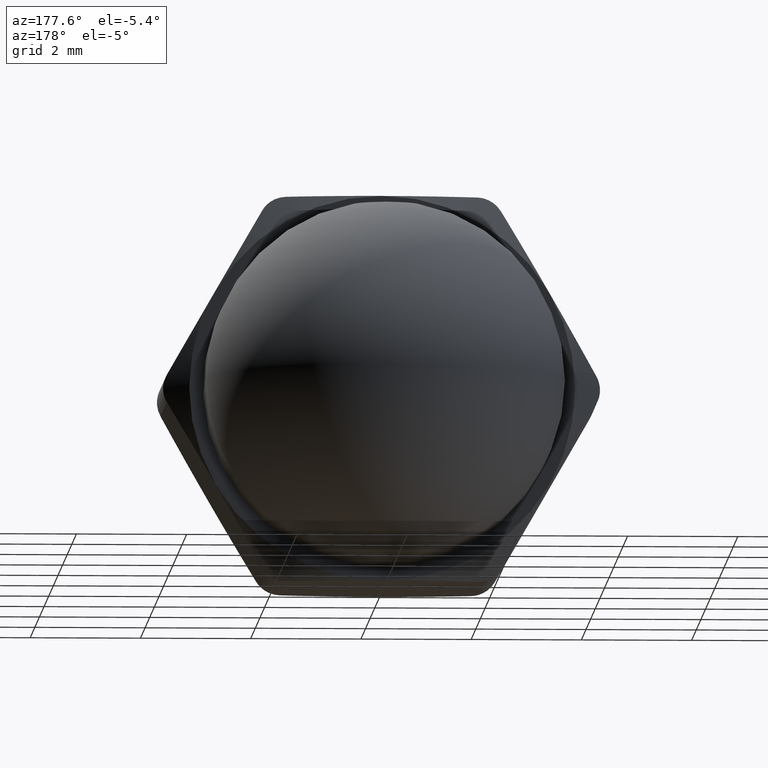
[diagram: clean part render]
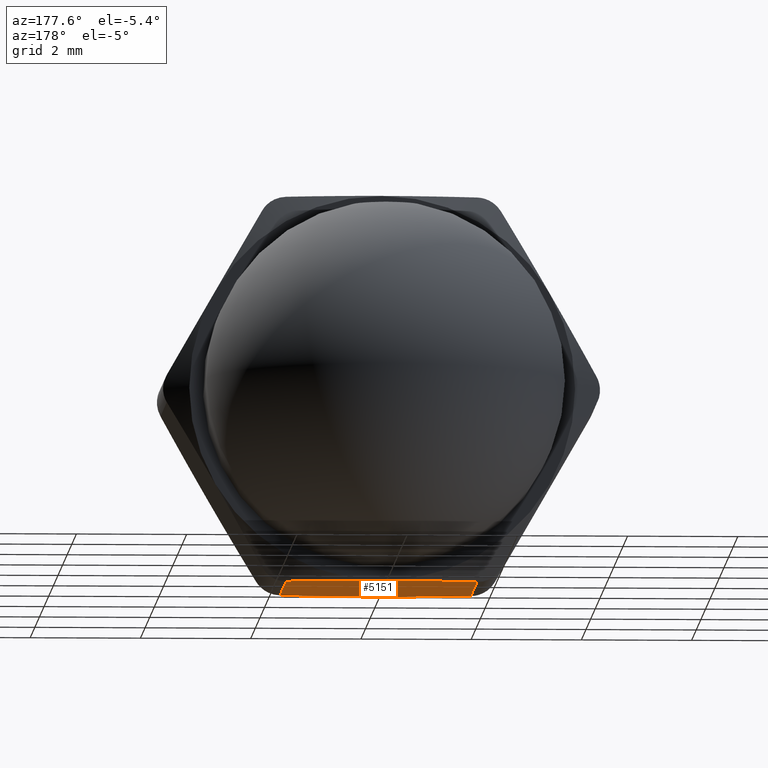
[diagram: same view with one face highlighted and labeled with its STEP entity id]
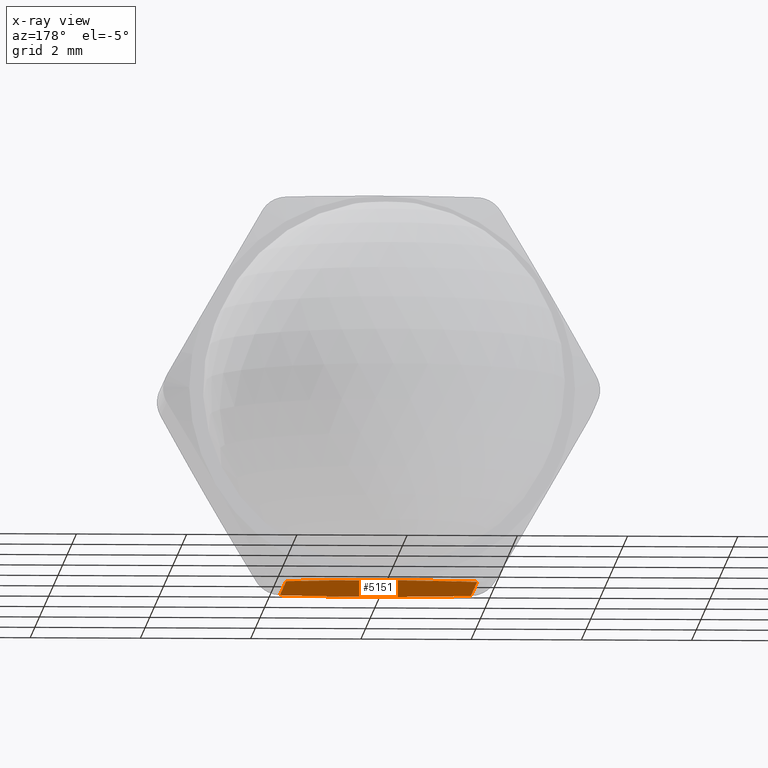
[diagram: x-ray of the same camera — body ghosted, the highlighted face saturated]
A machine part, auxiliary view. The second image highlights one B-rep face of the part: STEP entity #5151.
The next image is the same camera in x-ray: the body ghosted, the highlighted face saturated — about 0% of this face is hidden behind the body in this view.
In plain terms, the highlighted planar face has unit normal (0, -0, 1).
Its self-contained STEP definition (entity closure, byte-faithful):
#86 = CARTESIAN_POINT ( 'NONE',  ( -3.755786496842899600E-016, 0.0000000000000000000, -3.500000000000000400 ) ) ;
#244 = VERTEX_POINT ( 'NONE', #10527 ) ;
#258 = ORIENTED_EDGE ( 'NONE', *, *, #8116, .F. ) ;
#432 = CARTESIAN_POINT ( 'NONE',  ( -0.5819126441005161300, 0.02134135643301875500, -3.499999999999999600 ) ) ;
#872 = VECTOR ( 'NONE', #5849, 1000.000000000000000 ) ;
#876 = EDGE_CURVE ( 'NONE', #244, #13674, #14135, .T. ) ;
#1617 = VECTOR ( 'NONE', #7571, 1000.000000000000000 ) ;
#1753 = CARTESIAN_POINT ( 'NONE',  ( -0.2917606065235948700, 3.200000000000000600, -3.499999999999999100 ) ) ;
#1922 = DIRECTION ( 'NONE',  ( 1.073081856240828400E-016, -0.0000000000000000000, 1.000000000000000000 ) ) ;
#2223 = LINE ( 'NONE', #15304, #872 ) ;
#2314 = CARTESIAN_POINT ( 'NONE',  ( -1.732050807568968200, 2.966101065752227800, -3.499999999999999600 ) ) ;
#2394 = VERTEX_POINT ( 'NONE', #8873 ) ;
#3653 = B_SPLINE_CURVE_WITH_KNOTS ( 'NONE', 3,
 ( #12990, #1753, #10346, #12827, #9177, #6813 ),
 .UNSPECIFIED., .F., .F.,
 ( 4, 2, 4 ),
 ( 0.003521485397868664600, 0.004392585841541448600, 0.005263686285214233400 ),
 .UNSPECIFIED. ) ;
#3886 = CARTESIAN_POINT ( 'NONE',  ( 0.5869129917412827500, 0.02178223768137800600, -3.500000000000001300 ) ) ;
#4232 = DIRECTION ( 'NONE',  ( 1.000000000000000000, 0.0000000000000000000, -1.073081856240828400E-016 ) ) ;
#5151 = ADVANCED_FACE ( 'NONE', ( #15124 ), #9278, .F. ) ;
#5178 = EDGE_CURVE ( 'NONE', #11743, #7211, #3653, .T. ) ;
#5678 = VERTEX_POINT ( 'NONE', #14417 ) ;
#5767 = ORIENTED_EDGE ( 'NONE', *, *, #14898, .T. ) ;
#5849 = DIRECTION ( 'NONE',  ( -0.0000000000000000000, 1.000000000000000000, -0.0000000000000000000 ) ) ;
#6543 = CARTESIAN_POINT ( 'NONE',  ( 1.450919357738896400, 3.038091453126729600, -3.500000000000000000 ) ) ;
#6612 = CARTESIAN_POINT ( 'NONE',  ( -1.732050807568969600, 0.2338989342477725600, -3.499999999999999600 ) ) ;
#6798 = ORIENTED_EDGE ( 'NONE', *, *, #14986, .T. ) ;
#6813 = CARTESIAN_POINT ( 'NONE',  ( -1.732050807568968200, 2.966101065752227800, -3.499999999999999600 ) ) ;
#7211 = VERTEX_POINT ( 'NONE', #2314 ) ;
#7571 = DIRECTION ( 'NONE',  ( 0.0000000000000000000, -1.000000000000000000, 0.0000000000000000000 ) ) ;
#7681 = CARTESIAN_POINT ( 'NONE',  ( 0.2915641572602637500, 3.200000000000000600, -3.499999999999999600 ) ) ;
#7858 = CARTESIAN_POINT ( 'NONE',  ( -0.2917606065235952000, -3.193314211148712300E-016, -3.499999999999999600 ) ) ;
#7940 = CARTESIAN_POINT ( 'NONE',  ( 2.020725942163689400, 3.200000000000000200, -3.500000000000000000 ) ) ;
#8116 = EDGE_CURVE ( 'NONE', #2394, #11743, #13491, .T. ) ;
#8754 = ORIENTED_EDGE ( 'NONE', *, *, #5178, .F. ) ;
#8873 = CARTESIAN_POINT ( 'NONE',  ( 1.732050807568875600, 2.966101065752246900, -3.500000000000000000 ) ) ;
#8932 = CARTESIAN_POINT ( 'NONE',  ( 1.450919357738896600, 0.1619085468732702500, -3.500000000000000000 ) ) ;
#9177 = CARTESIAN_POINT ( 'NONE',  ( -1.448005845368342900, 3.038837527193880600, -3.499999999999999600 ) ) ;
#9278 = PLANE ( 'NONE',  #13903 ) ;
#9555 = CARTESIAN_POINT ( 'NONE',  ( -3.755786496842899600E-016, 0.0000000000000000000, -3.500000000000000400 ) ) ;
#9719 = EDGE_LOOP ( 'NONE', ( #12024, #5767, #8754, #258, #6798, #12689 ) ) ;
#10030 = CARTESIAN_POINT ( 'NONE',  ( -3.755786496842899600E-016, 3.200000000000000200, -3.500000000000000400 ) ) ;
#10192 = CARTESIAN_POINT ( 'NONE',  ( 0.5869129917412819800, 3.178217762318622100, -3.500000000000000000 ) ) ;
#10309 = CARTESIAN_POINT ( 'NONE',  ( -3.755786496842899600E-016, 3.200000000000000200, -3.500000000000000400 ) ) ;
#10346 = CARTESIAN_POINT ( 'NONE',  ( -0.5819126441005153500, 3.178658643566981900, -3.500000000000000000 ) ) ;
#10527 = CARTESIAN_POINT ( 'NONE',  ( -1.732050807568969600, 0.2338989342477725600, -3.499999999999999600 ) ) ;
#11083 = B_SPLINE_CURVE_WITH_KNOTS ( 'NONE', 3,
 ( #86, #13464, #3886, #14891, #8932, #11231 ),
 .UNSPECIFIED., .F., .F.,
 ( 4, 2, 4 ),
 ( 0.005649496001316434300, 0.006522241117297687900, 0.007394986233278942300 ),
 .UNSPECIFIED. ) ;
#11231 = CARTESIAN_POINT ( 'NONE',  ( 1.732050807568875600, 0.2338989342477533200, -3.500000000000000000 ) ) ;
#11743 = VERTEX_POINT ( 'NONE', #10030 ) ;
#12024 = ORIENTED_EDGE ( 'NONE', *, *, #876, .F. ) ;
#12689 = ORIENTED_EDGE ( 'NONE', *, *, #13876, .F. ) ;
#12827 = CARTESIAN_POINT ( 'NONE',  ( -1.159367772138356200, 3.098178112965396000, -3.499999999999999600 ) ) ;
#12990 = CARTESIAN_POINT ( 'NONE',  ( -3.755786496842899600E-016, 3.200000000000000200, -3.500000000000000400 ) ) ;
#13464 = CARTESIAN_POINT ( 'NONE',  ( 0.2915641572602634700, -3.563891125572468700E-016, -3.500000000000000000 ) ) ;
#13491 = B_SPLINE_CURVE_WITH_KNOTS ( 'NONE', 3,
 ( #13921, #6543, #15136, #10192, #7681, #10309 ),
 .UNSPECIFIED., .F., .F.,
 ( 4, 2, 4 ),
 ( 0.001780457575266038800, 0.002650971486567351700, 0.003521485397868664600 ),
 .UNSPECIFIED. ) ;
#13674 = VERTEX_POINT ( 'NONE', #9555 ) ;
#13876 = EDGE_CURVE ( 'NONE', #13674, #5678, #11083, .T. ) ;
#13903 = AXIS2_PLACEMENT_3D ( 'NONE', #7940, #1922, #4232 ) ;
#13921 = CARTESIAN_POINT ( 'NONE',  ( 1.732050807568875600, 2.966101065752246900, -3.500000000000000000 ) ) ;
#14135 = B_SPLINE_CURVE_WITH_KNOTS ( 'NONE', 3,
 ( #6612, #15191, #15146, #432, #7858, #14983 ),
 .UNSPECIFIED., .F., .F.,
 ( 4, 2, 4 ),
 ( 0.003902829697941578200, 0.004776162849629006500, 0.005649496001316434300 ),
 .UNSPECIFIED. ) ;
#14314 = LINE ( 'NONE', #15827, #1617 ) ;
#14417 = CARTESIAN_POINT ( 'NONE',  ( 1.732050807568875600, 0.2338989342477533200, -3.500000000000000000 ) ) ;
#14891 = CARTESIAN_POINT ( 'NONE',  ( 1.166222246419601500, 0.1030385192248800400, -3.499999999999998700 ) ) ;
#14898 = EDGE_CURVE ( 'NONE', #244, #7211, #2223, .T. ) ;
#14983 = CARTESIAN_POINT ( 'NONE',  ( -3.755786496842899600E-016, 0.0000000000000000000, -3.500000000000000400 ) ) ;
#14986 = EDGE_CURVE ( 'NONE', #2394, #5678, #14314, .T. ) ;
#15124 = FACE_OUTER_BOUND ( 'NONE', #9719, .T. ) ;
#15136 = CARTESIAN_POINT ( 'NONE',  ( 1.166222246419601300, 3.096961480775120000, -3.500000000000000400 ) ) ;
#15146 = CARTESIAN_POINT ( 'NONE',  ( -1.159367772138357500, 0.1018218870346038500, -3.500000000000000000 ) ) ;
#15191 = CARTESIAN_POINT ( 'NONE',  ( -1.448005845368343300, 0.1611624728061193900, -3.499999999999999100 ) ) ;
#15304 = CARTESIAN_POINT ( 'NONE',  ( -1.732050807568877000, 3.200000000000000200, -3.499999999999999600 ) ) ;
#15827 = CARTESIAN_POINT ( 'NONE',  ( 1.732050807568876300, 3.200000000000000200, -3.500000000000000000 ) ) ;